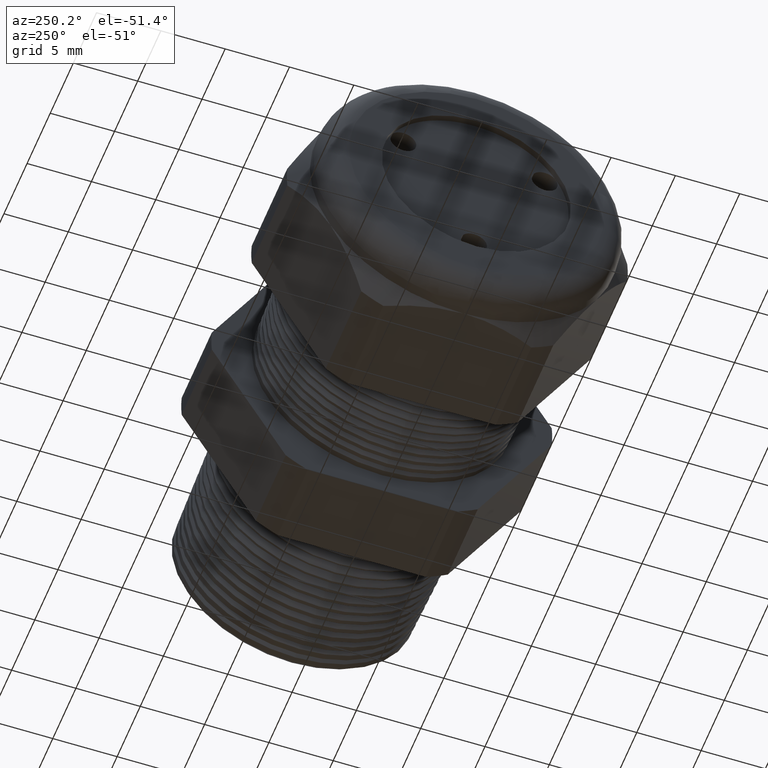
[diagram: clean part render]
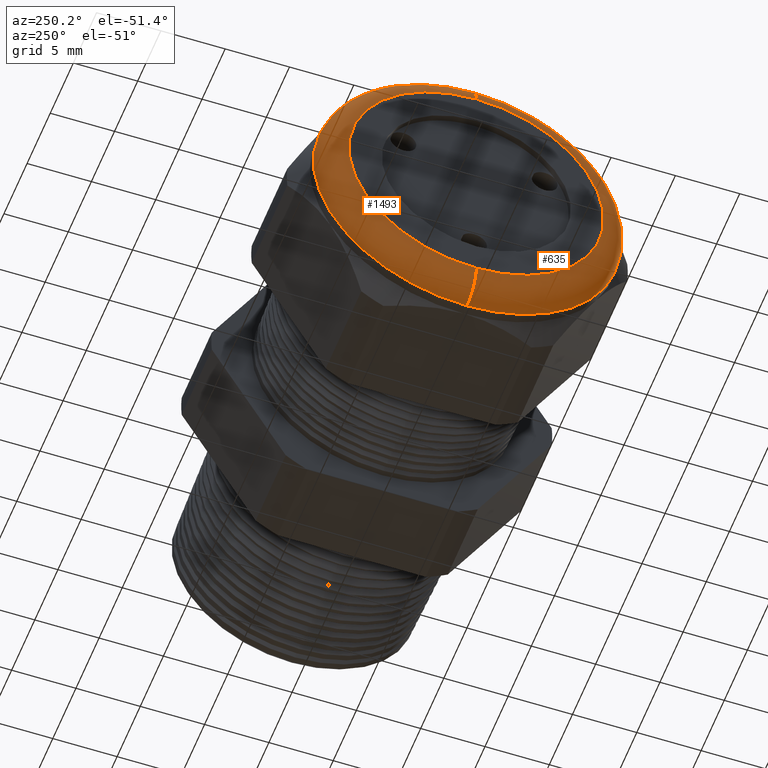
[diagram: same view with one multi-face feature highlighted, each face labeled with its STEP entity id]
A machine part, auxiliary view. The highlighted faces form ONE feature: a constant-radius fillet chain: 2 tangent blend faces with common blend radius 2.032 mm. The faces share edges in the B-rep.
Their STEP definitions:
[1] entity #1493 (Torus):
#1475 = ORIENTED_EDGE ( 'NONE', *, *, #1476, .F. ) ;
#1476 = EDGE_CURVE ( 'NONE', #1498, #1504, #4528, .T. ) ;
#1493 = ADVANCED_FACE ( 'NONE', ( #4558 ), #4556, .T. ) ;
#1494 = EDGE_LOOP ( 'NONE', ( #1495, #1499, #1502, #1475 ) ) ;
#1495 = ORIENTED_EDGE ( 'NONE', *, *, #1496, .F. ) ;
#1496 = EDGE_CURVE ( 'NONE', #1497, #1498, #4552, .T. ) ;
#1497 = VERTEX_POINT ( 'NONE', #4547 ) ;
#1498 = VERTEX_POINT ( 'NONE', #4546 ) ;
#1499 = ORIENTED_EDGE ( 'NONE', *, *, #1500, .T. ) ;
#1500 = EDGE_CURVE ( 'NONE', #1497, #1501, #4607, .T. ) ;
#1501 = VERTEX_POINT ( 'NONE', #4603 ) ;
#1502 = ORIENTED_EDGE ( 'NONE', *, *, #1503, .F. ) ;
#1503 = EDGE_CURVE ( 'NONE', #1504, #1501, #4602, .T. ) ;
#1504 = VERTEX_POINT ( 'NONE', #4597 ) ;
#4524 = DIRECTION ( 'NONE',  ( 0.0000000000000000000, 0.0000000000000000000, -1.000000000000000000 ) ) ;
#4525 = DIRECTION ( 'NONE',  ( 0.0000000000000000000, -1.000000000000000000, 0.0000000000000000000 ) ) ;
#4526 = CARTESIAN_POINT ( 'NONE',  ( -1.290000000000000500, 0.0000000000000000000, 0.3899999999999999600 ) ) ;
#4527 = AXIS2_PLACEMENT_3D ( 'NONE', #4526, #4525, #4524 ) ;
#4528 = CIRCLE ( 'NONE', #4527, 0.07999999999999996000 ) ;
#4545 = CARTESIAN_POINT ( 'NONE',  ( -1.290000000000000500, 4.776122516674676800E-017, -0.3899999999999999600 ) ) ;
#4546 = CARTESIAN_POINT ( 'NONE',  ( -1.290000000000000500, 5.755839955992558400E-017, 0.4699999999999999200 ) ) ;
#4547 = CARTESIAN_POINT ( 'NONE',  ( -1.290000000000000500, 0.0000000000000000000, -0.4699999999999999200 ) ) ;
#4548 = DIRECTION ( 'NONE',  ( 0.0000000000000000000, 0.0000000000000000000, 1.000000000000000000 ) ) ;
#4549 = DIRECTION ( 'NONE',  ( 1.000000000000000000, 0.0000000000000000000, 0.0000000000000000000 ) ) ;
#4550 = CARTESIAN_POINT ( 'NONE',  ( -1.290000000000000500, 0.0000000000000000000, 0.0000000000000000000 ) ) ;
#4551 = AXIS2_PLACEMENT_3D ( 'NONE', #4550, #4549, #4548 ) ;
#4552 = CIRCLE ( 'NONE', #4551, 0.4699999999999999200 ) ;
#4553 = DIRECTION ( 'NONE',  ( 0.0000000000000000000, 0.0000000000000000000, 1.000000000000000000 ) ) ;
#4554 = DIRECTION ( 'NONE',  ( -1.000000000000000000, 0.0000000000000000000, 0.0000000000000000000 ) ) ;
#4555 = AXIS2_PLACEMENT_3D ( 'NONE', #4557, #4554, #4553 ) ;
#4556 = TOROIDAL_SURFACE ( 'NONE', #4555, 0.3899999999999999600, 0.08000000000000000200 ) ;
#4557 = CARTESIAN_POINT ( 'NONE',  ( -1.290000000000000500, 0.0000000000000000000, 0.0000000000000000000 ) ) ;
#4558 = FACE_OUTER_BOUND ( 'NONE', #1494, .T. ) ;
#4597 = CARTESIAN_POINT ( 'NONE',  ( -1.370000000000000300, 0.0000000000000000000, 0.3899999999999999600 ) ) ;
#4598 = DIRECTION ( 'NONE',  ( 0.0000000000000000000, 0.0000000000000000000, 1.000000000000000000 ) ) ;
#4599 = DIRECTION ( 'NONE',  ( -1.000000000000000000, 0.0000000000000000000, 0.0000000000000000000 ) ) ;
#4600 = CARTESIAN_POINT ( 'NONE',  ( -1.370000000000000300, 0.0000000000000000000, 0.0000000000000000000 ) ) ;
#4601 = AXIS2_PLACEMENT_3D ( 'NONE', #4600, #4599, #4598 ) ;
#4602 = CIRCLE ( 'NONE', #4601, 0.3899999999999999600 ) ;
#4603 = CARTESIAN_POINT ( 'NONE',  ( -1.370000000000000300, 5.265981236333617600E-017, -0.3899999999999999600 ) ) ;
#4604 = DIRECTION ( 'NONE',  ( 0.0000000000000000000, -1.224646799147353900E-016, 1.000000000000000000 ) ) ;
#4605 = DIRECTION ( 'NONE',  ( 0.0000000000000000000, 1.000000000000000000, 1.224646799147353200E-016 ) ) ;
#4606 = AXIS2_PLACEMENT_3D ( 'NONE', #4545, #4605, #4604 ) ;
#4607 = CIRCLE ( 'NONE', #4606, 0.07999999999999996000 ) ;
[2] entity #635 (Torus):
#458 = EDGE_CURVE ( 'NONE', #1498, #1497, #2880, .T. ) ;
#477 = EDGE_CURVE ( 'NONE', #1501, #1504, #2973, .T. ) ;
#618 = ORIENTED_EDGE ( 'NONE', *, *, #477, .F. ) ;
#635 = ADVANCED_FACE ( 'NONE', ( #3154 ), #3153, .T. ) ;
#636 = EDGE_LOOP ( 'NONE', ( #637, #638, #639, #618 ) ) ;
#637 = ORIENTED_EDGE ( 'NONE', *, *, #1500, .F. ) ;
#638 = ORIENTED_EDGE ( 'NONE', *, *, #458, .F. ) ;
#639 = ORIENTED_EDGE ( 'NONE', *, *, #1476, .T. ) ;
#1476 = EDGE_CURVE ( 'NONE', #1498, #1504, #4528, .T. ) ;
#1497 = VERTEX_POINT ( 'NONE', #4547 ) ;
#1498 = VERTEX_POINT ( 'NONE', #4546 ) ;
#1500 = EDGE_CURVE ( 'NONE', #1497, #1501, #4607, .T. ) ;
#1501 = VERTEX_POINT ( 'NONE', #4603 ) ;
#1504 = VERTEX_POINT ( 'NONE', #4597 ) ;
#2878 = CARTESIAN_POINT ( 'NONE',  ( -1.290000000000000500, 0.0000000000000000000, 0.0000000000000000000 ) ) ;
#2879 = AXIS2_PLACEMENT_3D ( 'NONE', #2878, #2944, #2943 ) ;
#2880 = CIRCLE ( 'NONE', #2879, 0.4699999999999999200 ) ;
#2943 = DIRECTION ( 'NONE',  ( 0.0000000000000000000, 0.0000000000000000000, 1.000000000000000000 ) ) ;
#2944 = DIRECTION ( 'NONE',  ( 1.000000000000000000, 0.0000000000000000000, 0.0000000000000000000 ) ) ;
#2969 = DIRECTION ( 'NONE',  ( 0.0000000000000000000, 0.0000000000000000000, 1.000000000000000000 ) ) ;
#2970 = DIRECTION ( 'NONE',  ( -1.000000000000000000, 0.0000000000000000000, 0.0000000000000000000 ) ) ;
#2971 = CARTESIAN_POINT ( 'NONE',  ( -1.370000000000000300, 0.0000000000000000000, 0.0000000000000000000 ) ) ;
#2972 = AXIS2_PLACEMENT_3D ( 'NONE', #2971, #2970, #2969 ) ;
#2973 = CIRCLE ( 'NONE', #2972, 0.3899999999999999600 ) ;
#3150 = DIRECTION ( 'NONE',  ( 0.0000000000000000000, 0.0000000000000000000, 1.000000000000000000 ) ) ;
#3151 = DIRECTION ( 'NONE',  ( -1.000000000000000000, 0.0000000000000000000, 0.0000000000000000000 ) ) ;
#3152 = AXIS2_PLACEMENT_3D ( 'NONE', #3158, #3151, #3150 ) ;
#3153 = TOROIDAL_SURFACE ( 'NONE', #3152, 0.3899999999999999600, 0.08000000000000000200 ) ;
#3154 = FACE_OUTER_BOUND ( 'NONE', #636, .T. ) ;
#3158 = CARTESIAN_POINT ( 'NONE',  ( -1.290000000000000500, 0.0000000000000000000, 0.0000000000000000000 ) ) ;
#4524 = DIRECTION ( 'NONE',  ( 0.0000000000000000000, 0.0000000000000000000, -1.000000000000000000 ) ) ;
#4525 = DIRECTION ( 'NONE',  ( 0.0000000000000000000, -1.000000000000000000, 0.0000000000000000000 ) ) ;
#4526 = CARTESIAN_POINT ( 'NONE',  ( -1.290000000000000500, 0.0000000000000000000, 0.3899999999999999600 ) ) ;
#4527 = AXIS2_PLACEMENT_3D ( 'NONE', #4526, #4525, #4524 ) ;
#4528 = CIRCLE ( 'NONE', #4527, 0.07999999999999996000 ) ;
#4545 = CARTESIAN_POINT ( 'NONE',  ( -1.290000000000000500, 4.776122516674676800E-017, -0.3899999999999999600 ) ) ;
#4546 = CARTESIAN_POINT ( 'NONE',  ( -1.290000000000000500, 5.755839955992558400E-017, 0.4699999999999999200 ) ) ;
#4547 = CARTESIAN_POINT ( 'NONE',  ( -1.290000000000000500, 0.0000000000000000000, -0.4699999999999999200 ) ) ;
#4597 = CARTESIAN_POINT ( 'NONE',  ( -1.370000000000000300, 0.0000000000000000000, 0.3899999999999999600 ) ) ;
#4603 = CARTESIAN_POINT ( 'NONE',  ( -1.370000000000000300, 5.265981236333617600E-017, -0.3899999999999999600 ) ) ;
#4604 = DIRECTION ( 'NONE',  ( 0.0000000000000000000, -1.224646799147353900E-016, 1.000000000000000000 ) ) ;
#4605 = DIRECTION ( 'NONE',  ( 0.0000000000000000000, 1.000000000000000000, 1.224646799147353200E-016 ) ) ;
#4606 = AXIS2_PLACEMENT_3D ( 'NONE', #4545, #4605, #4604 ) ;
#4607 = CIRCLE ( 'NONE', #4606, 0.07999999999999996000 ) ;